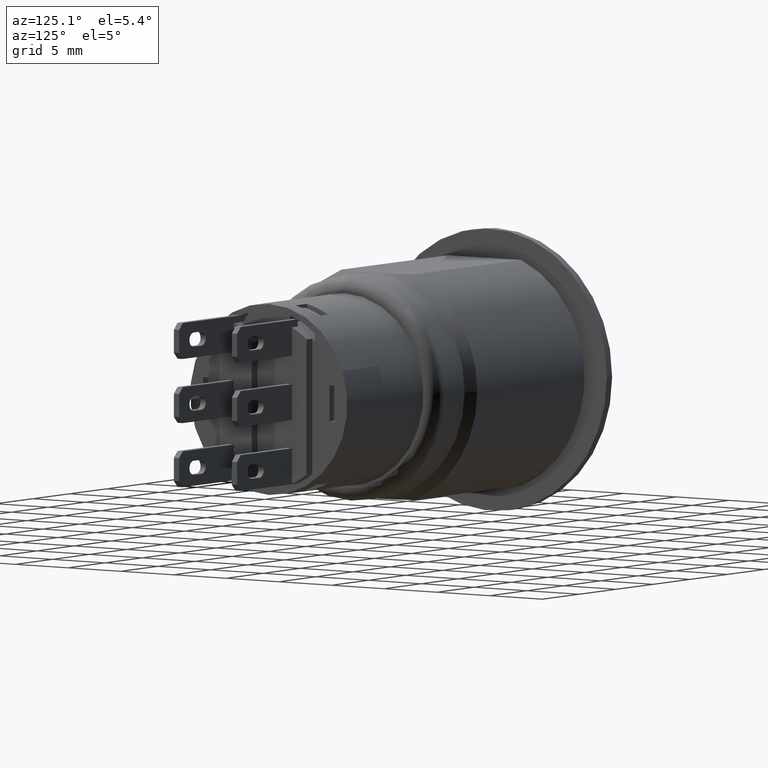
[diagram: clean part render]
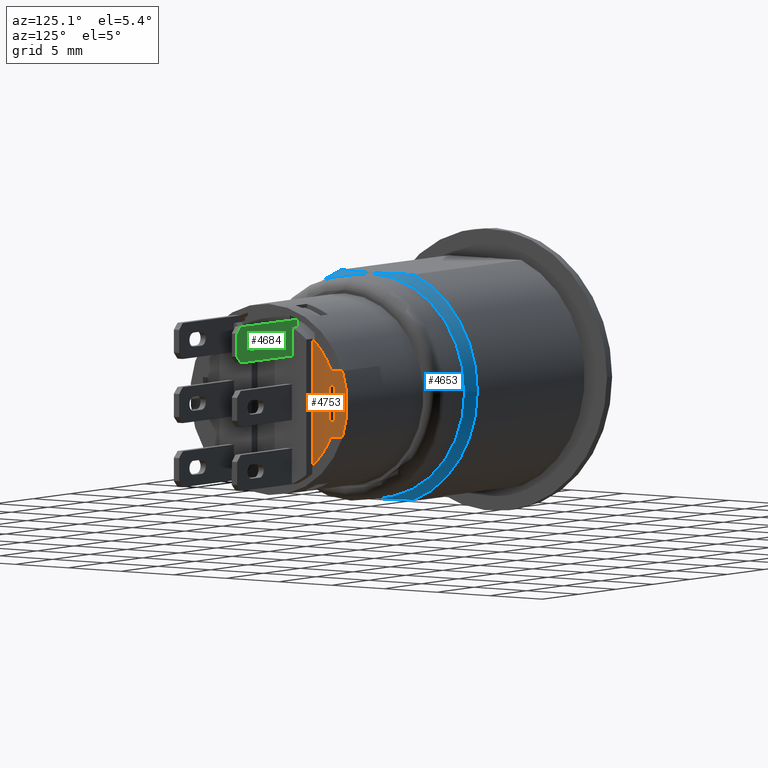
[diagram: same view with three faces highlighted in distinct colors, each labeled with its STEP entity id]
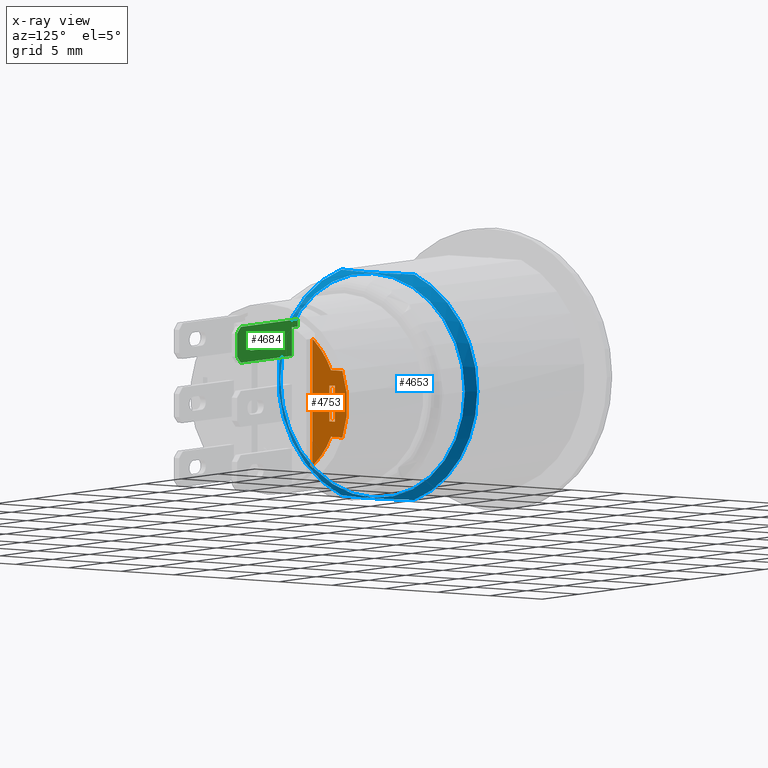
[diagram: x-ray of the same camera — body ghosted, the three highlighted faces saturated]
A machine part, auxiliary view with three faces highlighted in distinct colors.
The next image is the same camera in x-ray (body ghosted, the three faces saturated) — at least one of them is partly hidden behind the body in this view.
Their STEP definitions:

[orange] entity #4753 — the highlighted planar face has unit normal (1, -0, 0).
#59=FACE_BOUND('',#789,.T.);
#242=CIRCLE('',#5113,0.253937007874016);
#270=CIRCLE('',#5159,0.253937007874016);
#276=CIRCLE('',#5167,0.253937007874016);
#277=CIRCLE('',#5168,0.293307086614173);
#278=CIRCLE('',#5169,0.253937007874016);
#504=FACE_OUTER_BOUND('',#788,.T.);
#788=EDGE_LOOP('',(#3786,#3787,#3788,#3789,#3790,#3791,#3792,#3793));
#789=EDGE_LOOP('',(#3794,#3795,#3796,#3797));
#1159=LINE('',#7504,#1629);
#1201=LINE('',#7638,#1671);
#1208=LINE('',#7664,#1678);
#1209=LINE('',#7667,#1679);
#1210=LINE('',#7669,#1680);
#1211=LINE('',#7671,#1681);
#1212=LINE('',#7672,#1682);
#1629=VECTOR('',#5953,0.393700787401575);
#1671=VECTOR('',#6089,0.393700787401575);
#1678=VECTOR('',#6116,0.393700787401575);
#1679=VECTOR('',#6117,0.393700787401575);
#1680=VECTOR('',#6118,0.393700787401575);
#1681=VECTOR('',#6119,0.393700787401575);
#1682=VECTOR('',#6120,0.393700787401575);
#2139=VERTEX_POINT('',#7501);
#2140=VERTEX_POINT('',#7503);
#2141=VERTEX_POINT('',#7505);
#2181=VERTEX_POINT('',#7623);
#2184=VERTEX_POINT('',#7635);
#2185=VERTEX_POINT('',#7637);
#2193=VERTEX_POINT('',#7659);
#2194=VERTEX_POINT('',#7662);
#2195=VERTEX_POINT('',#7665);
#2196=VERTEX_POINT('',#7666);
#2197=VERTEX_POINT('',#7668);
#2198=VERTEX_POINT('',#7670);
#2698=EDGE_CURVE('',#2139,#2140,#1159,.T.);
#2699=EDGE_CURVE('',#2140,#2141,#242,.T.);
#2768=EDGE_CURVE('',#2181,#2184,#270,.T.);
#2769=EDGE_CURVE('',#2184,#2185,#1201,.T.);
#2781=EDGE_CURVE('',#2193,#2141,#276,.T.);
#2782=EDGE_CURVE('',#2185,#2139,#277,.T.);
#2783=EDGE_CURVE('',#2194,#2181,#278,.T.);
#2784=EDGE_CURVE('',#2194,#2193,#1208,.T.);
#2785=EDGE_CURVE('',#2195,#2196,#1209,.T.);
#2786=EDGE_CURVE('',#2196,#2197,#1210,.T.);
#2787=EDGE_CURVE('',#2197,#2198,#1211,.T.);
#2788=EDGE_CURVE('',#2198,#2195,#1212,.T.);
#3786=ORIENTED_EDGE('',*,*,#2781,.T.);
#3787=ORIENTED_EDGE('',*,*,#2699,.F.);
#3788=ORIENTED_EDGE('',*,*,#2698,.F.);
#3789=ORIENTED_EDGE('',*,*,#2782,.F.);
#3790=ORIENTED_EDGE('',*,*,#2769,.F.);
#3791=ORIENTED_EDGE('',*,*,#2768,.F.);
#3792=ORIENTED_EDGE('',*,*,#2783,.F.);
#3793=ORIENTED_EDGE('',*,*,#2784,.T.);
#3794=ORIENTED_EDGE('',*,*,#2785,.T.);
#3795=ORIENTED_EDGE('',*,*,#2786,.T.);
#3796=ORIENTED_EDGE('',*,*,#2787,.T.);
#3797=ORIENTED_EDGE('',*,*,#2788,.T.);
#4543=PLANE('',#5166);
#4753=ADVANCED_FACE('',(#504,#59),#4543,.T.);
#5113=AXIS2_PLACEMENT_3D('',#7506,#5954,#5955);
#5159=AXIS2_PLACEMENT_3D('',#7636,#6087,#6088);
#5166=AXIS2_PLACEMENT_3D('',#7658,#6108,#6109);
#5167=AXIS2_PLACEMENT_3D('',#7660,#6110,#6111);
#5168=AXIS2_PLACEMENT_3D('',#7661,#6112,#6113);
#5169=AXIS2_PLACEMENT_3D('',#7663,#6114,#6115);
#5953=DIRECTION('',(-4.68421939370568E-15,-1.,5.14549893891708E-16));
#5954=DIRECTION('center_axis',(-1.,4.68421939370568E-15,-1.11022302462302E-16));
#5955=DIRECTION('ref_axis',(3.25885868374662E-15,0.678294573643411,-0.734790086600183));
#6087=DIRECTION('center_axis',(-1.,4.68421939370568E-15,-1.11022302462302E-16));
#6088=DIRECTION('ref_axis',(4.24203641523401E-15,0.915155596080884,0.403100775193798));
#6089=DIRECTION('',(4.68421939370568E-15,1.,0.));
#6108=DIRECTION('center_axis',(1.,-4.68421939370568E-15,1.11022302462302E-16));
#6109=DIRECTION('ref_axis',(1.11022302462302E-16,-5.42341872339426E-31,
-1.));
#6110=DIRECTION('center_axis',(1.,-4.68421939370568E-15,1.11022302462302E-16));
#6111=DIRECTION('ref_axis',(2.36306164752404E-16,-0.310077519379848,0.95071127687392));
#6112=DIRECTION('center_axis',(-1.,4.68421939370568E-15,-1.11022302462302E-16));
#6113=DIRECTION('ref_axis',(4.42844618468967E-15,0.937125223499355,-0.348993288590604));
#6114=DIRECTION('center_axis',(-1.,4.68421939370568E-15,-1.11022302462302E-16));
#6115=DIRECTION('ref_axis',(4.24203641523401E-15,0.915155596080884,0.403100775193798));
#6116=DIRECTION('',(1.110223024623E-16,-4.73465870092958E-16,-1.));
#6117=DIRECTION('',(4.68421939370568E-15,1.,5.55111512312578E-16));
#6118=DIRECTION('',(1.11022302462302E-16,-5.42341872339426E-31,-1.));
#6119=DIRECTION('',(-4.68421939370568E-15,-1.,5.55111512312578E-16));
#6120=DIRECTION('',(-1.11022302462302E-16,5.42341872339426E-31,1.));
#7501=CARTESIAN_POINT('',(1.18110236220472,0.27486546909725,-0.10236220472441));
#7503=CARTESIAN_POINT('',(1.18110236220472,0.23239187380794,-0.10236220472441));
#7504=CARTESIAN_POINT('',(1.18110236220472,0.23239187380794,-0.10236220472441));
#7505=CARTESIAN_POINT('',(1.18110236220472,0.172244094488188,-0.18659039600674));
#7506=CARTESIAN_POINT('Origin',(1.18110236220472,-1.258618271436E-15,-5.89319234965587E-16));
#7623=CARTESIAN_POINT('',(1.18110236220472,0.172244094488188,0.186590396006739));
#7635=CARTESIAN_POINT('',(1.18110236220472,0.23239187380794,0.102362204724409));
#7636=CARTESIAN_POINT('Origin',(1.18110236220472,-1.258618271436E-15,-5.89319234965587E-16));
#7637=CARTESIAN_POINT('',(1.18110236220472,0.27486546909725,0.102362204724409));
#7638=CARTESIAN_POINT('',(1.18110236220472,0.27486546909725,0.102362204724409));
#7658=CARTESIAN_POINT('Origin',(1.18110236220472,-1.258618271436E-15,-0.00147428946366122));
#7659=CARTESIAN_POINT('',(1.18110236220472,0.162401574803148,-0.195217141843296));
#7660=CARTESIAN_POINT('Origin',(1.18110236220472,-5.61287909140641E-16,
-7.33408822697832E-16));
#7661=CARTESIAN_POINT('Origin',(1.18110236220472,-1.258618271436E-15,-5.89319234965587E-16));
#7662=CARTESIAN_POINT('',(1.18110236220472,0.162401574803148,0.195217141843294));
#7663=CARTESIAN_POINT('Origin',(1.18110236220472,-1.258618271436E-15,-5.89319234965587E-16));
#7664=CARTESIAN_POINT('',(1.18110236220472,0.162401574803148,0.0968714261898162));
#7665=CARTESIAN_POINT('',(1.18110236220472,0.226377952755904,0.0551181102362199));
#7666=CARTESIAN_POINT('',(1.18110236220472,0.246062992125983,0.0551181102362199));
#7667=CARTESIAN_POINT('',(1.18110236220472,0.123031496062991,0.0551181102362198));
#7668=CARTESIAN_POINT('',(1.18110236220472,0.246062992125983,-0.0551181102362211));
#7669=CARTESIAN_POINT('',(1.18110236220472,0.246062992125983,-0.0282961998499411));
#7670=CARTESIAN_POINT('',(1.18110236220472,0.226377952755904,-0.0551181102362211));
#7671=CARTESIAN_POINT('',(1.18110236220472,0.113188976377951,-0.055118110236221));
#7672=CARTESIAN_POINT('',(1.18110236220472,0.226377952755904,0.0268219103862793));

[blue] entity #4653 — the highlighted conical surface has half-angle 45 deg.
#15=CONICAL_SURFACE('',#4962,0.358267716535433,0.785398163397438);
#21=(
BOUNDED_CURVE()
B_SPLINE_CURVE(2,(#6809,#6810,#6811),.UNSPECIFIED.,.F.,.F.)
B_SPLINE_CURVE_WITH_KNOTS((3,3),(0.,0.700999286732874),.UNSPECIFIED.)
CURVE()
GEOMETRIC_REPRESENTATION_ITEM()
RATIONAL_B_SPLINE_CURVE((1.,1.07386363636363,1.))
REPRESENTATION_ITEM('')
);
#22=(
BOUNDED_CURVE()
B_SPLINE_CURVE(2,(#6828,#6829,#6830),.UNSPECIFIED.,.F.,.F.)
B_SPLINE_CURVE_WITH_KNOTS((3,3),(1.94637570686143,3.44133252577323),
 .UNSPECIFIED.)
CURVE()
GEOMETRIC_REPRESENTATION_ITEM()
RATIONAL_B_SPLINE_CURVE((1.79452054794519,1.92707036114568,1.79452054794519))
REPRESENTATION_ITEM('')
);
#172=CIRCLE('',#4963,0.372047244094488);
#173=CIRCLE('',#4964,0.344488188976378);
#174=CIRCLE('',#4965,0.344488188976378);
#175=CIRCLE('',#4966,0.372047244094488);
#176=CIRCLE('',#4967,0.372047244094488);
#404=FACE_OUTER_BOUND('',#665,.T.);
#665=EDGE_LOOP('',(#3161,#3162,#3163,#3164,#3165,#3166,#3167,#3168,#3169));
#950=LINE('',#6821,#1420);
#1420=VECTOR('',#5446,0.358267716535433);
#1904=VERTEX_POINT('',#6807);
#1905=VERTEX_POINT('',#6808);
#1908=VERTEX_POINT('',#6818);
#1909=VERTEX_POINT('',#6820);
#1910=VERTEX_POINT('',#6822);
#1911=VERTEX_POINT('',#6825);
#1912=VERTEX_POINT('',#6827);
#2392=EDGE_CURVE('',#1904,#1905,#21,.T.);
#2396=EDGE_CURVE('',#1905,#1908,#172,.T.);
#2397=EDGE_CURVE('',#1908,#1909,#950,.T.);
#2398=EDGE_CURVE('',#1910,#1909,#173,.T.);
#2399=EDGE_CURVE('',#1909,#1910,#174,.T.);
#2400=EDGE_CURVE('',#1908,#1911,#175,.T.);
#2401=EDGE_CURVE('',#1911,#1912,#22,.T.);
#2402=EDGE_CURVE('',#1912,#1904,#176,.T.);
#3161=ORIENTED_EDGE('',*,*,#2392,.T.);
#3162=ORIENTED_EDGE('',*,*,#2396,.T.);
#3163=ORIENTED_EDGE('',*,*,#2397,.T.);
#3164=ORIENTED_EDGE('',*,*,#2398,.F.);
#3165=ORIENTED_EDGE('',*,*,#2399,.F.);
#3166=ORIENTED_EDGE('',*,*,#2397,.F.);
#3167=ORIENTED_EDGE('',*,*,#2400,.T.);
#3168=ORIENTED_EDGE('',*,*,#2401,.T.);
#3169=ORIENTED_EDGE('',*,*,#2402,.T.);
#4653=ADVANCED_FACE('',(#404),#15,.T.);
#4962=AXIS2_PLACEMENT_3D('',#6817,#5442,#5443);
#4963=AXIS2_PLACEMENT_3D('',#6819,#5444,#5445);
#4964=AXIS2_PLACEMENT_3D('',#6823,#5447,#5448);
#4965=AXIS2_PLACEMENT_3D('',#6824,#5449,#5450);
#4966=AXIS2_PLACEMENT_3D('',#6826,#5451,#5452);
#4967=AXIS2_PLACEMENT_3D('',#6831,#5453,#5454);
#5442=DIRECTION('center_axis',(-1.,0.,7.37230385094371E-16));
#5443=DIRECTION('ref_axis',(0.,-1.,0.));
#5444=DIRECTION('center_axis',(1.,0.,-7.37230385094371E-16));
#5445=DIRECTION('ref_axis',(0.,-1.,0.));
#5446=DIRECTION('',(0.707106781186555,-0.70710678118654,-4.34704998973456E-16));
#5447=DIRECTION('center_axis',(1.,0.,-7.37230385094371E-16));
#5448=DIRECTION('ref_axis',(-7.01193489236941E-16,0.,-1.));
#5449=DIRECTION('center_axis',(1.,0.,-7.37230385094371E-16));
#5450=DIRECTION('ref_axis',(-7.01193489236941E-16,0.,-1.));
#5451=DIRECTION('center_axis',(1.,0.,-7.37230385094371E-16));
#5452=DIRECTION('ref_axis',(0.,-1.,0.));
#5453=DIRECTION('center_axis',(1.,0.,-7.37230385094371E-16));
#5454=DIRECTION('ref_axis',(0.,-1.,0.));
#6807=CARTESIAN_POINT('',(0.602362204724408,-0.135598347238539,-0.346456692913386));
#6808=CARTESIAN_POINT('',(0.602362204724408,0.135598347238539,-0.346456692913386));
#6809=CARTESIAN_POINT('Ctrl Pts',(0.602362204724409,-0.135598347238539,
-0.346456692913386));
#6810=CARTESIAN_POINT('Ctrl Pts',(0.651783110444528,0.,-0.346456692913386));
#6811=CARTESIAN_POINT('Ctrl Pts',(0.602362204724409,0.135598347238539,-0.346456692913386));
#6817=CARTESIAN_POINT('Origin',(0.616141732283464,0.,-1.01586864087809E-17));
#6818=CARTESIAN_POINT('',(0.602362204724409,0.372047244094488,-4.55626466611909E-17));
#6819=CARTESIAN_POINT('Origin',(0.602362204724409,0.,0.));
#6820=CARTESIAN_POINT('',(0.62992125984252,0.344488188976317,-6.25050049258083E-17));
#6821=CARTESIAN_POINT('',(0.616141732283464,0.358267716535433,-5.40338276380758E-17));
#6822=CARTESIAN_POINT('',(0.62992125984252,-4.2187635797399E-17,0.344488393517149));
#6823=CARTESIAN_POINT('Origin',(0.62992125984252,0.,2.04540771604135E-7));
#6824=CARTESIAN_POINT('Origin',(0.62992125984252,0.,2.04540771604135E-7));
#6825=CARTESIAN_POINT('',(0.602362204724409,0.135598347238539,0.346456692913386));
#6826=CARTESIAN_POINT('Origin',(0.602362204724409,0.,0.));
#6827=CARTESIAN_POINT('',(0.602362204724409,-0.135598347238539,0.346456692913386));
#6828=CARTESIAN_POINT('Ctrl Pts',(0.602362204724409,0.135598347238539,0.346456692913386));
#6829=CARTESIAN_POINT('Ctrl Pts',(0.651783110444527,-1.44241574065473E-15,
0.346456692913386));
#6830=CARTESIAN_POINT('Ctrl Pts',(0.602362204724409,-0.135598347238539,
0.346456692913386));
#6831=CARTESIAN_POINT('Origin',(0.602362204724409,0.,0.));

[green] entity #4684 — the highlighted planar face has unit normal (0, 1, 0).
#43=FACE_BOUND('',#704,.T.);
#202=CIRCLE('',#5024,0.0216535433070866);
#203=CIRCLE('',#5025,0.0216535433070866);
#435=FACE_OUTER_BOUND('',#703,.T.);
#703=EDGE_LOOP('',(#3315,#3316,#3317,#3318,#3319,#3320,#3321,#3322,#3323));
#704=EDGE_LOOP('',(#3324,#3325,#3326,#3327));
#1004=LINE('',#6996,#1474);
#1006=LINE('',#7000,#1476);
#1007=LINE('',#7002,#1477);
#1008=LINE('',#7004,#1478);
#1009=LINE('',#7006,#1479);
#1010=LINE('',#7008,#1480);
#1011=LINE('',#7010,#1481);
#1012=LINE('',#7012,#1482);
#1013=LINE('',#7013,#1483);
#1014=LINE('',#7016,#1484);
#1015=LINE('',#7020,#1485);
#1474=VECTOR('',#5618,0.393700787401575);
#1476=VECTOR('',#5622,0.393700787401575);
#1477=VECTOR('',#5623,0.393700787401575);
#1478=VECTOR('',#5624,0.393700787401575);
#1479=VECTOR('',#5625,0.393700787401575);
#1480=VECTOR('',#5626,0.393700787401575);
#1481=VECTOR('',#5627,0.393700787401575);
#1482=VECTOR('',#5628,0.393700787401575);
#1483=VECTOR('',#5629,0.393700787401575);
#1484=VECTOR('',#5630,0.393700787401575);
#1485=VECTOR('',#5633,0.393700787401575);
#1967=VERTEX_POINT('',#6993);
#1968=VERTEX_POINT('',#6995);
#1969=VERTEX_POINT('',#6999);
#1970=VERTEX_POINT('',#7001);
#1971=VERTEX_POINT('',#7003);
#1972=VERTEX_POINT('',#7005);
#1973=VERTEX_POINT('',#7007);
#1974=VERTEX_POINT('',#7009);
#1975=VERTEX_POINT('',#7011);
#1976=VERTEX_POINT('',#7014);
#1977=VERTEX_POINT('',#7015);
#1978=VERTEX_POINT('',#7017);
#1979=VERTEX_POINT('',#7019);
#2481=EDGE_CURVE('',#1967,#1968,#1004,.T.);
#2483=EDGE_CURVE('',#1967,#1969,#1006,.T.);
#2484=EDGE_CURVE('',#1970,#1969,#1007,.T.);
#2485=EDGE_CURVE('',#1970,#1971,#1008,.T.);
#2486=EDGE_CURVE('',#1972,#1971,#1009,.T.);
#2487=EDGE_CURVE('',#1972,#1973,#1010,.T.);
#2488=EDGE_CURVE('',#1974,#1973,#1011,.T.);
#2489=EDGE_CURVE('',#1974,#1975,#1012,.T.);
#2490=EDGE_CURVE('',#1968,#1975,#1013,.T.);
#2491=EDGE_CURVE('',#1976,#1977,#1014,.T.);
#2492=EDGE_CURVE('',#1977,#1978,#202,.T.);
#2493=EDGE_CURVE('',#1978,#1979,#1015,.T.);
#2494=EDGE_CURVE('',#1979,#1976,#203,.T.);
#3315=ORIENTED_EDGE('',*,*,#2483,.T.);
#3316=ORIENTED_EDGE('',*,*,#2484,.F.);
#3317=ORIENTED_EDGE('',*,*,#2485,.T.);
#3318=ORIENTED_EDGE('',*,*,#2486,.F.);
#3319=ORIENTED_EDGE('',*,*,#2487,.T.);
#3320=ORIENTED_EDGE('',*,*,#2488,.F.);
#3321=ORIENTED_EDGE('',*,*,#2489,.T.);
#3322=ORIENTED_EDGE('',*,*,#2490,.F.);
#3323=ORIENTED_EDGE('',*,*,#2481,.F.);
#3324=ORIENTED_EDGE('',*,*,#2491,.T.);
#3325=ORIENTED_EDGE('',*,*,#2492,.T.);
#3326=ORIENTED_EDGE('',*,*,#2493,.T.);
#3327=ORIENTED_EDGE('',*,*,#2494,.T.);
#4485=PLANE('',#5023);
#4684=ADVANCED_FACE('',(#435,#43),#4485,.T.);
#5023=AXIS2_PLACEMENT_3D('',#6998,#5620,#5621);
#5024=AXIS2_PLACEMENT_3D('',#7018,#5631,#5632);
#5025=AXIS2_PLACEMENT_3D('',#7021,#5634,#5635);
#5618=DIRECTION('',(1.,-3.98428528595132E-15,1.98807130465143E-15));
#5620=DIRECTION('center_axis',(3.98428528595131E-15,1.,4.4016068338852E-15));
#5621=DIRECTION('ref_axis',(-1.98807130465145E-15,-4.40160683388519E-15,
1.));
#5622=DIRECTION('',(-1.11022302462305E-16,-4.96881729221835E-16,1.));
#5623=DIRECTION('',(1.,-4.68421939370568E-15,1.11022302462302E-16));
#5624=DIRECTION('',(-1.98807130465145E-15,-4.40160683388519E-15,1.));
#5625=DIRECTION('',(-6.20952803217496E-16,4.4016068338852E-15,-1.));
#5626=DIRECTION('',(1.,-3.98428528595132E-15,1.98807130465143E-15));
#5627=DIRECTION('',(-0.707106781186549,-2.95090896479306E-16,0.707106781186546));
#5628=DIRECTION('',(1.98807130465145E-15,4.40160683388519E-15,-1.));
#5629=DIRECTION('',(0.707106781186546,-5.92972118423523E-15,0.707106781186549));
#5630=DIRECTION('',(1.,-3.98428528595132E-15,1.98807130465143E-15));
#5631=DIRECTION('center_axis',(-3.98428528595131E-15,-1.,-4.4016068338852E-15));
#5632=DIRECTION('ref_axis',(1.98807130465145E-15,4.56681859350203E-15,-1.));
#5633=DIRECTION('',(-1.,3.98428528595132E-15,-1.86190959730767E-15));
#5634=DIRECTION('center_axis',(-3.98428528595131E-15,-1.,-4.4016068338852E-15));
#5635=DIRECTION('ref_axis',(-1.98807130465145E-15,-4.52551565364706E-15,
1.));
#6993=CARTESIAN_POINT('',(1.21259842519685,0.108267716535432,0.141732283464566));
#6995=CARTESIAN_POINT('',(1.48425196850393,0.10826771653543,0.141732283464568));
#6996=CARTESIAN_POINT('',(1.18110236220472,0.108267716535431,0.141732283464567));
#6998=CARTESIAN_POINT('Origin',(1.18110236220472,0.108267716535431,0.251968503937008));
#6999=CARTESIAN_POINT('',(1.21259842519685,0.108267716535432,0.229700033792359));
#7000=CARTESIAN_POINT('',(1.21259842519685,0.108267716535432,0.229700033792359));
#7001=CARTESIAN_POINT('',(1.18110236220472,0.108267716535432,0.229700033792359));
#7002=CARTESIAN_POINT('',(1.18110236220472,0.108267716535432,0.229700033792359));
#7003=CARTESIAN_POINT('',(1.18110236220472,0.108267716535431,0.251290919641464));
#7004=CARTESIAN_POINT('',(1.18110236220472,0.108267716535431,0.141732283464567));
#7005=CARTESIAN_POINT('',(1.18110236220472,0.108267716535431,0.251968503937008));
#7006=CARTESIAN_POINT('',(1.18110236220472,0.108267716535431,0.125984251968504));
#7007=CARTESIAN_POINT('',(1.48425196850393,0.10826771653543,0.251968503937009));
#7008=CARTESIAN_POINT('',(1.18110236220472,0.108267716535431,0.251968503937008));
#7009=CARTESIAN_POINT('',(1.50393700787401,0.10826771653543,0.23228346456693));
#7010=CARTESIAN_POINT('',(1.41338582677165,0.10826771653543,0.322834645669292));
#7011=CARTESIAN_POINT('',(1.50393700787401,0.10826771653543,0.161417322834647));
#7012=CARTESIAN_POINT('',(1.50393700787401,0.10826771653543,0.141732283464568));
#7013=CARTESIAN_POINT('',(1.44094488188976,0.108267716535431,0.0984251968503944));
#7014=CARTESIAN_POINT('',(1.38385826771653,0.10826771653543,0.175196850418112));
#7015=CARTESIAN_POINT('',(1.4271653543307,0.10826771653543,0.175196850418112));
#7016=CARTESIAN_POINT('',(1.28248031496062,0.108267716535431,0.175196850418112));
#7017=CARTESIAN_POINT('',(1.4271653543307,0.10826771653543,0.218503937032286));
#7018=CARTESIAN_POINT('Origin',(1.4271653543307,0.10826771653543,0.196850393725199));
#7019=CARTESIAN_POINT('',(1.38385826771653,0.10826771653543,0.218503937032286));
#7020=CARTESIAN_POINT('',(1.30413385826771,0.108267716535431,0.218503937032285));
#7021=CARTESIAN_POINT('Origin',(1.38385826771653,0.10826771653543,0.196850393725199));